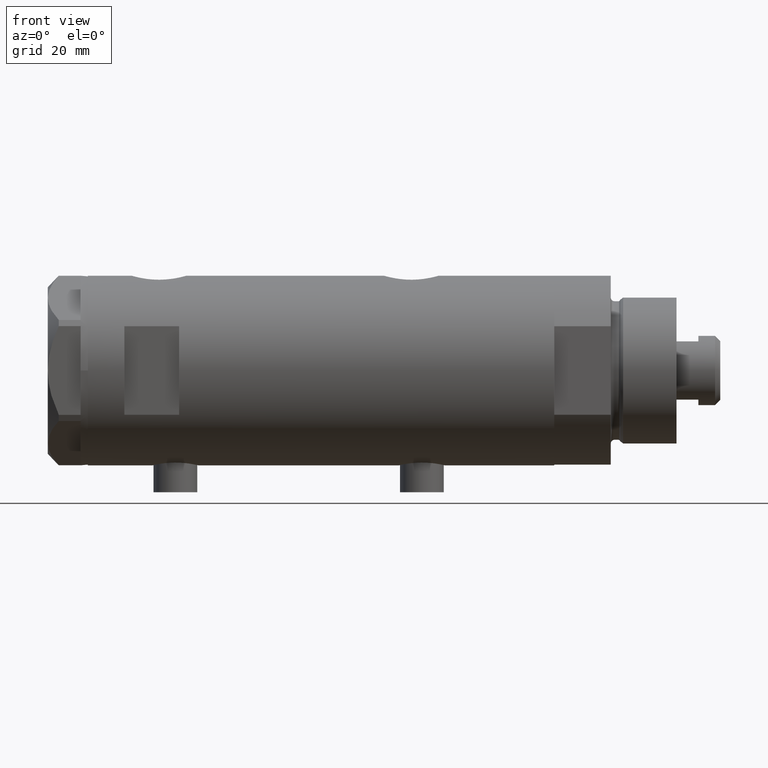
[diagram: clean part render]
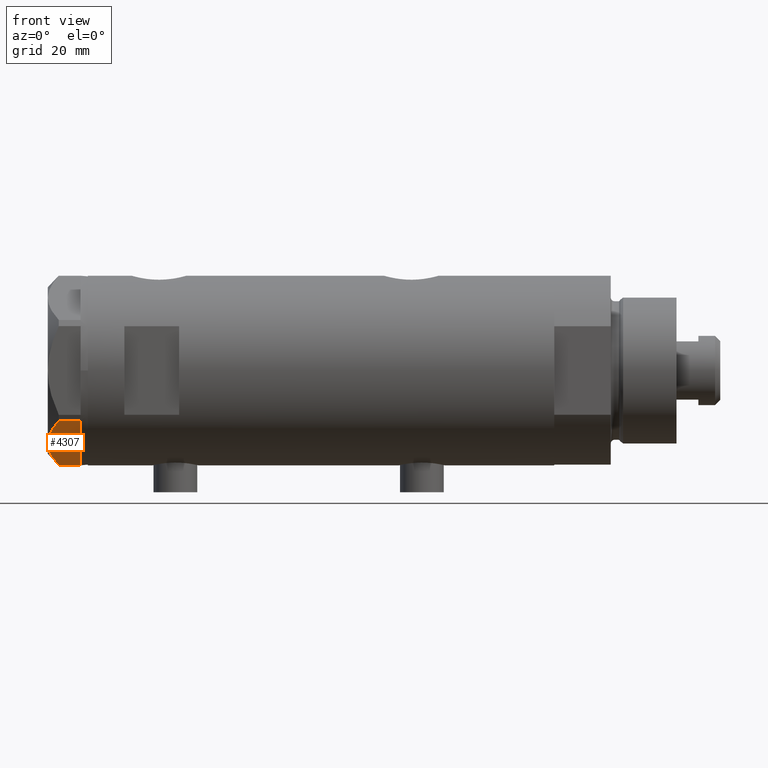
[diagram: same view with one face highlighted and labeled with its STEP entity id]
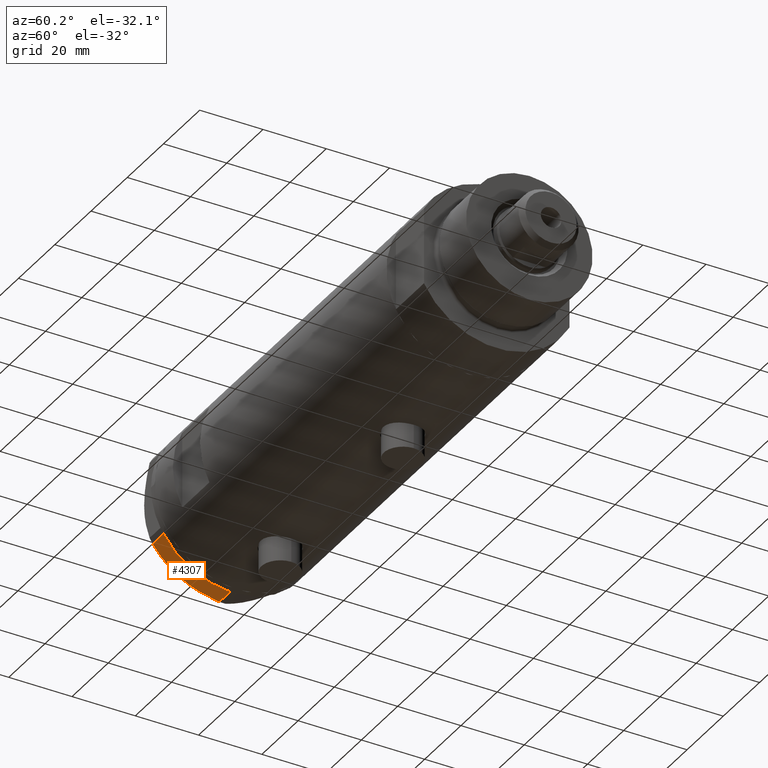
[diagram: same view with one face highlighted and labeled with its STEP entity id]
A machine part, front view. The second image highlights one B-rep face of the part: STEP entity #4307.
A second angle (auxiliary view) of the same face is appended — the face is thin or edge-on in the first view.
In plain terms, the highlighted planar face has unit normal (0, 0.5, 0.866).
Its self-contained STEP definition (entity closure, byte-faithful):
#51 = VERTEX_POINT ( 'NONE', #1062 ) ;
#162 = CARTESIAN_POINT ( 'NONE',  ( -17.77001848220191604, 16.29858742851882170, 7.892128867758443356 ) ) ;
#237 = CARTESIAN_POINT ( 'NONE',  ( -20.35958612119326361, 14.80349985506240884, 6.844201024438374859 ) ) ;
#288 = VERTEX_POINT ( 'NONE', #4019 ) ;
#289 = VECTOR ( 'NONE', #428, 1000.000000000000227 ) ;
#425 = AXIS2_PLACEMENT_3D ( 'NONE', #495, #2028, #4262 ) ;
#428 = DIRECTION ( 'NONE',  ( -0.8660254037844380415, -0.5000000000000008882, 0.000000000000000000 ) ) ;
#435 = ORIENTED_EDGE ( 'NONE', *, *, #608, .F. ) ;
#495 = CARTESIAN_POINT ( 'NONE',  ( 0.000000000000000000, 26.55811238272274366, 9.000000000000000000 ) ) ;
#527 = EDGE_CURVE ( 'NONE', #756, #3829, #4237, .T. ) ;
#608 = EDGE_CURVE ( 'NONE', #621, #288, #2804, .T. ) ;
#621 = VERTEX_POINT ( 'NONE', #2599 ) ;
#668 = CARTESIAN_POINT ( 'NONE',  ( -6.946777556903624529, 22.54738849024398206, 8.426899937603780089 ) ) ;
#756 = VERTEX_POINT ( 'NONE', #3754 ) ;
#766 = ORIENTED_EDGE ( 'NONE', *, *, #527, .T. ) ;
#897 = EDGE_CURVE ( 'NONE', #51, #756, #2418, .T. ) ;
#1013 = LINE ( 'NONE', #3582, #1077 ) ;
#1020 = CARTESIAN_POINT ( 'NONE',  ( -0.9699484522385772856, 25.99811238272273783, 0.000000000000000000 ) ) ;
#1062 = CARTESIAN_POINT ( 'NONE',  ( -0.9999999999999089617, 25.98076211353316367, 0.000000000000000000 ) ) ;
#1063 = CARTESIAN_POINT ( 'NONE',  ( -2.626494320835632390, 25.04170517956325881, 6.877782426143454586 ) ) ;
#1077 = VECTOR ( 'NONE', #3287, 1000.000000000000000 ) ;
#1172 = LINE ( 'NONE', #2734, #2427 ) ;
#1341 = EDGE_CURVE ( 'NONE', #3829, #1935, #1013, .T. ) ;
#1344 = CARTESIAN_POINT ( 'NONE',  ( 0.000000000000000000, 26.55811238272274366, 0.000000000000000000 ) ) ;
#1391 = CARTESIAN_POINT ( 'NONE',  ( -19.07486218896994856, 15.54523556316589961, 7.397272853991406549 ) ) ;
#1519 = B_SPLINE_CURVE_WITH_KNOTS ( 'NONE', 3,
 ( #2036, #3538, #2620, #1881, #162, #2118, #1391, #237, #1732, #2057 ),
 .UNSPECIFIED., .F., .F.,
 ( 4, 2, 2, 2, 4 ),
 ( 0.01376519981810312397, 0.01998941321701588544, 0.02154546656674408145, 0.02310151991647227399, 0.02621362661592866600 ),
 .UNSPECIFIED. ) ;
#1598 = VERTEX_POINT ( 'NONE', #1020 ) ;
#1705 = CARTESIAN_POINT ( 'NONE',  ( -22.03005154776142760, 13.83905619136131904, 0.000000000000000000 ) ) ;
#1732 = CARTESIAN_POINT ( 'NONE',  ( -21.20080365460318461, 14.31782268570115768, 6.431317509509388408 ) ) ;
#1742 = CARTESIAN_POINT ( 'NONE',  ( -10.58093321976963175, 20.44920774001128549, 8.981686407609499767 ) ) ;
#1853 = CARTESIAN_POINT ( 'NONE',  ( -4.320186229909880105, 24.06385169993494699, 7.629374868826106493 ) ) ;
#1881 = CARTESIAN_POINT ( 'NONE',  ( -17.32831362639718975, 16.55360584592005679, 8.040681765829335248 ) ) ;
#1899 = ORIENTED_EDGE ( 'NONE', *, *, #4654, .F. ) ;
#1935 = VERTEX_POINT ( 'NONE', #2067 ) ;
#1981 = CARTESIAN_POINT ( 'NONE',  ( -0.9699484522384356211, 25.99811238272282310, 5.983800287807548912 ) ) ;
#2028 = DIRECTION ( 'NONE',  ( 0.5000000000000009992, -0.8660254037844381525, 0.000000000000000000 ) ) ;
#2036 = CARTESIAN_POINT ( 'NONE',  ( -11.50000000000004441, 19.91858428704211548, 9.000000000000000000 ) ) ;
#2057 = CARTESIAN_POINT ( 'NONE',  ( -22.03005154776144181, 13.83905619136131371, 5.983800287807625295 ) ) ;
#2067 = CARTESIAN_POINT ( 'NONE',  ( -22.03005154776144181, 13.83905619136131371, 5.983800287807625295 ) ) ;
#2118 = CARTESIAN_POINT ( 'NONE',  ( -18.64279229058394804, 15.79469123530778951, 7.570552255229721084 ) ) ;
#2124 = CARTESIAN_POINT ( 'NONE',  ( -11.50000000000004441, 19.91858428704211548, 9.000000000000000000 ) ) ;
#2137 = EDGE_LOOP ( 'NONE', ( #766, #4633, #1899, #435, #3517, #2801, #2845 ) ) ;
#2329 = VECTOR ( 'NONE', #2541, 1000.000000000000227 ) ;
#2418 = LINE ( 'NONE', #3200, #4386 ) ;
#2427 = VECTOR ( 'NONE', #4626, 1000.000000000000000 ) ;
#2429 = EDGE_CURVE ( 'NONE', #621, #1598, #1172, .T. ) ;
#2541 = DIRECTION ( 'NONE',  ( -0.8660254037844380415, -0.5000000000000008882, 0.000000000000000000 ) ) ;
#2549 = CARTESIAN_POINT ( 'NONE',  ( -11.04134848610939557, 20.18338686205100885, 9.000000000000094147 ) ) ;
#2599 = CARTESIAN_POINT ( 'NONE',  ( -0.9699484522384356211, 25.99811238272282310, 5.983800287807548912 ) ) ;
#2620 = CARTESIAN_POINT ( 'NONE',  ( -15.11535457301033247, 17.83125835109856183, 8.707651728477001640 ) ) ;
#2734 = CARTESIAN_POINT ( 'NONE',  ( -0.9699484522385775076, 25.99811238272273783, 9.000000000000000000 ) ) ;
#2753 = FACE_OUTER_BOUND ( 'NONE', #2137, .T. ) ;
#2801 = ORIENTED_EDGE ( 'NONE', *, *, #4679, .T. ) ;
#2804 = B_SPLINE_CURVE_WITH_KNOTS ( 'NONE', 3,
 ( #1981, #1063, #1853, #668, #4464, #4796, #4050, #1742, #2549, #2124 ),
 .UNSPECIFIED., .F., .F.,
 ( 4, 2, 2, 2, 4 ),
 ( 0.001228959670438516723, 0.007497079744270820564, 0.01063113978118697227, 0.01219816979964504812, 0.01376519981810312397 ),
 .UNSPECIFIED. ) ;
#2845 = ORIENTED_EDGE ( 'NONE', *, *, #897, .T. ) ;
#3110 = DIRECTION ( 'NONE',  ( -0.8660254037844380415, -0.5000000000000008882, 0.000000000000000000 ) ) ;
#3177 = LINE ( 'NONE', #1344, #2329 ) ;
#3200 = CARTESIAN_POINT ( 'NONE',  ( 0.000000000000000000, 26.55811238272274366, 0.000000000000000000 ) ) ;
#3287 = DIRECTION ( 'NONE',  ( 0.000000000000000000, 0.000000000000000000, 1.000000000000000000 ) ) ;
#3517 = ORIENTED_EDGE ( 'NONE', *, *, #2429, .T. ) ;
#3538 = CARTESIAN_POINT ( 'NONE',  ( -13.32175508098984729, 18.86679350063496585, 9.000000000000088818 ) ) ;
#3582 = CARTESIAN_POINT ( 'NONE',  ( -22.03005154776143115, 13.83905619136131726, 9.000000000000000000 ) ) ;
#3754 = CARTESIAN_POINT ( 'NONE',  ( -22.00000000000008171, 13.85640646055089498, 0.000000000000000000 ) ) ;
#3829 = VERTEX_POINT ( 'NONE', #1705 ) ;
#4019 = CARTESIAN_POINT ( 'NONE',  ( -11.50000000000004441, 19.91858428704211548, 9.000000000000000000 ) ) ;
#4050 = CARTESIAN_POINT ( 'NONE',  ( -9.656518383329848021, 20.98291889467267168, 8.907842277728436287 ) ) ;
#4237 = LINE ( 'NONE', #4323, #289 ) ;
#4262 = DIRECTION ( 'NONE',  ( 0.8660254037844380415, 0.5000000000000008882, 0.000000000000000000 ) ) ;
#4307 = ADVANCED_FACE ( 'NONE', ( #2753 ), #4681, .F. ) ;
#4323 = CARTESIAN_POINT ( 'NONE',  ( 0.000000000000000000, 26.55811238272274366, 0.000000000000000000 ) ) ;
#4386 = VECTOR ( 'NONE', #3110, 1000.000000000000227 ) ;
#4464 = CARTESIAN_POINT ( 'NONE',  ( -7.836767740116576952, 22.03355241838985279, 8.637313967156947214 ) ) ;
#4626 = DIRECTION ( 'NONE',  ( 0.000000000000000000, 0.000000000000000000, -1.000000000000000000 ) ) ;
#4633 = ORIENTED_EDGE ( 'NONE', *, *, #1341, .T. ) ;
#4654 = EDGE_CURVE ( 'NONE', #288, #1935, #1519, .T. ) ;
#4679 = EDGE_CURVE ( 'NONE', #1598, #51, #3177, .T. ) ;
#4681 = PLANE ( 'NONE',  #425 ) ;
#4796 = CARTESIAN_POINT ( 'NONE',  ( -9.197898616902920210, 21.24770314027494678, 8.852712638955802404 ) ) ;